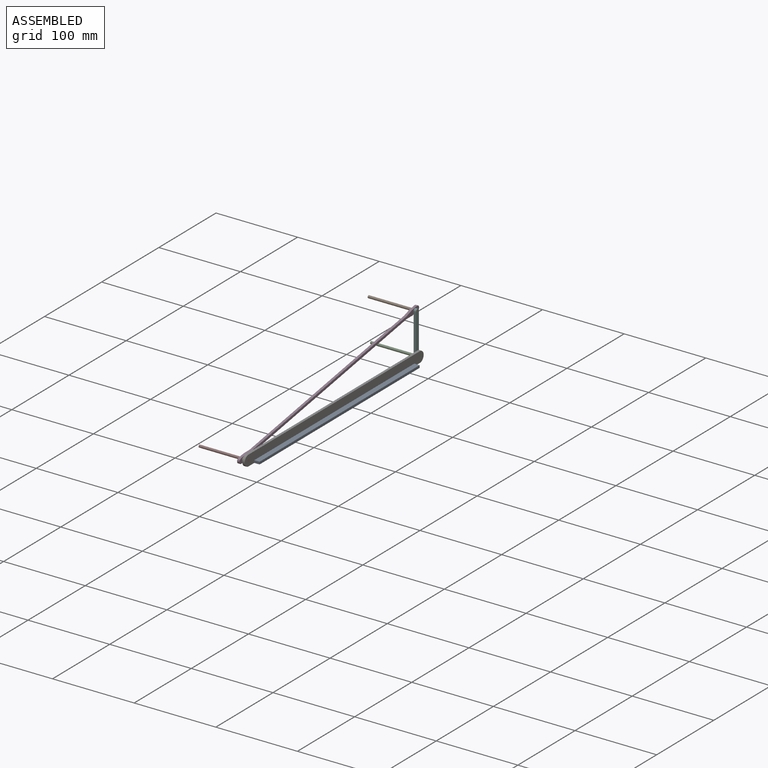
[diagram: assembled view]
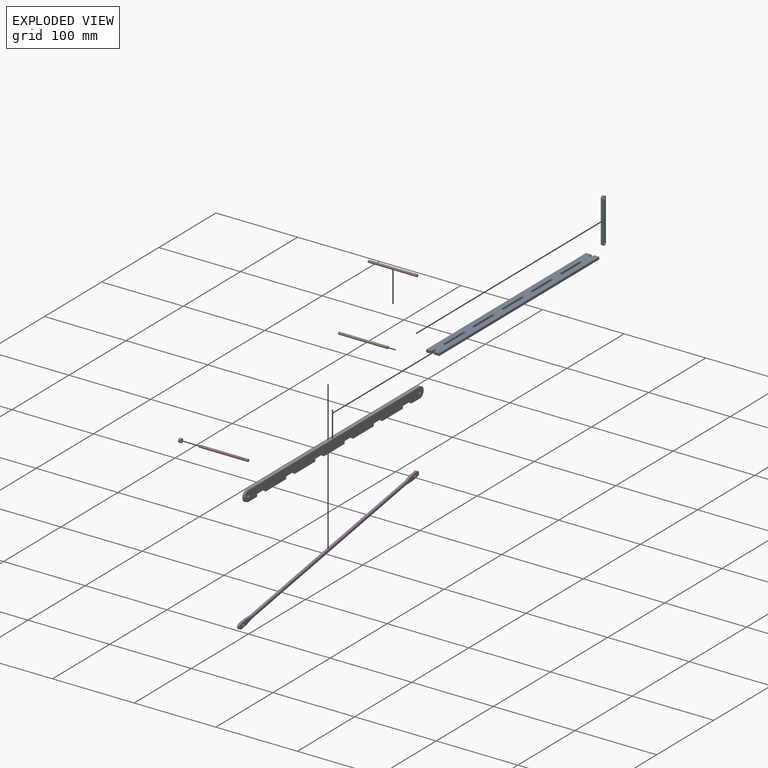
[diagram: exploded view]
GUIDED TOUR — MATED ASSEMBLY (Onshape document 0ccabe889815cbe9a2afd0c9, AutoMate assembly 0ccabe889815cbe9a2afd0c9_cd03710a9d6902d8eb512300_cfd27afecc6dace2c3d03a55_default)

This assembly has 8 components, labeled P0..P7 below (a component is one placed occurrence of a part; the same part can appear more than once), held together by 8 mates. A mate is a constraint between two components; its type names the relative motion it leaves free:
  CYLINDRICAL — leaves both rotation about and translation along the listed axis free,
  FASTENED — locks the two components together rigidly (no relative motion),
  PARALLEL — keeps the two listed directions parallel,
  REVOLUTE — leaves rotation about the listed axis free (a hinge).
Axis/direction vectors are unit vectors and 'through' points are millimeter coordinates, both in the assembly's world frame.

MATES
  1. CYLINDRICAL "Cylindrical 1": P3 <-> P1, axis (-1.000, 0.000, 0.000) through (-7.50, 0.00, 50.00) mm
  2. FASTENED "T to B": P2 <-> P6, direction (1.000, 0.000, 0.000) through (0.00, 0.00, 0.00) mm
  3. FASTENED "V to B": P5 <-> P6, direction (1.000, 0.000, 0.000) through (-3.00, 0.00, 0.00) mm
  4. FASTENED "Fastened 1": P5 <-> P1, direction (1.000, 0.000, 0.000) through (-3.00, 0.00, 50.00) mm
  5. FASTENED "C to T": P6 <-> P7, direction (1.000, 0.000, 0.000) through (0.00, -300.00, 0.00) mm
  6. REVOLUTE "Revolute 1": P4 <-> P6, axis (1.000, 0.000, 0.000) through (-3.00, -300.00, 0.00) mm
  7. FASTENED "T Beam Fasten": P0 <-> P6, direction (0.000, -1.000, 0.000) through (-1.50, -233.87, -5.00) mm
  8. PARALLEL "Parallel 1": P3 <-> P5, direction (1.000, 0.000, 0.000) through (-6.00, 0.02, 46.84) mm

ASSEMBLY ORDER
  1. P7 — the base component [order verified]
  2. P2 [order verified]
  3. P6 [order verified]
  4. P0 [order verified]
  5. P3 [order verified]
  6. P1 [order verified]
  7. P5 [order verified]
  8. P4 [order verified]
(P0 verified with a relaxed clearance tolerance: the source model stores slight part interference there.)
Order-tag legend:
  [order verified] — this step's position reverses a verified removal order: the component was checked to insert without passing through the ones already placed.

Of the 8 components, 8 carry the full construction recipe — the FeatureScript program that regenerates the part's solid from scratch; the rest are supplied as boundary geometry only.
Each toured component is shown spotlighted twice — in the assembled view, then in the exploded view, where a leader line traces a displaced component back to its assembled socket (saturated green if recipe-attached, orange if geometry-only; every other component desaturated gray) — followed by its recipe or geometry summary and the mates that hold it.
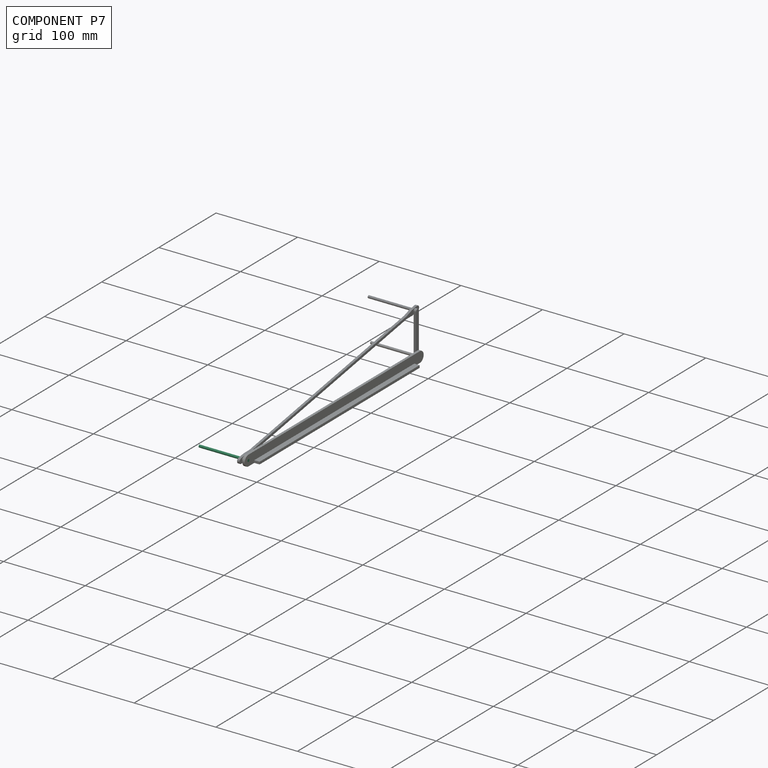
[diagram: component P7 — assembled]
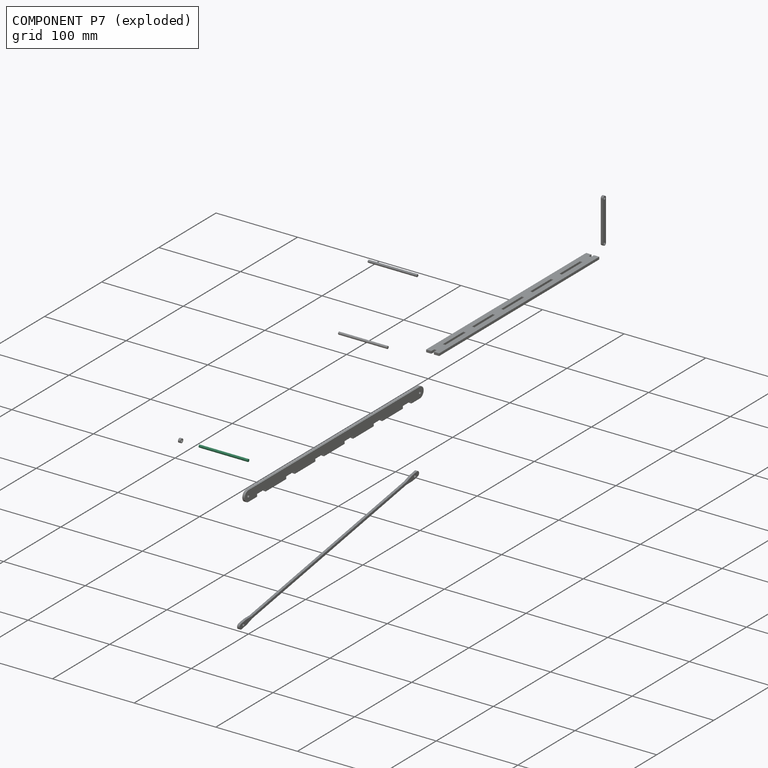
[diagram: component P7 — exploded]
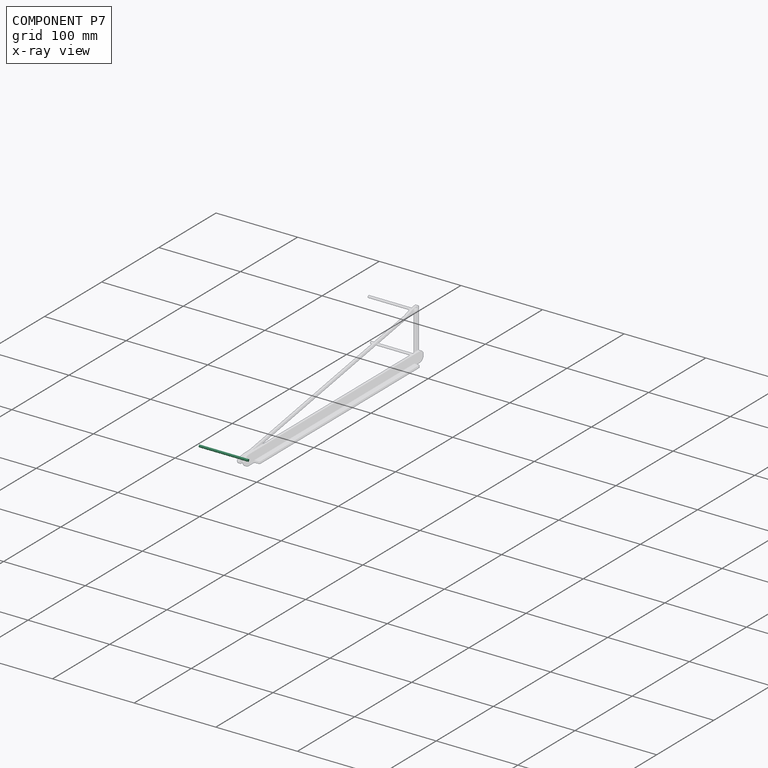
[diagram: component P7 — x-ray view]
COMPONENT P7 — same part as P1 (CADFS 00595506); its construction recipe is shown at P1.
Held by: FASTENED mate "C to T" to P6.
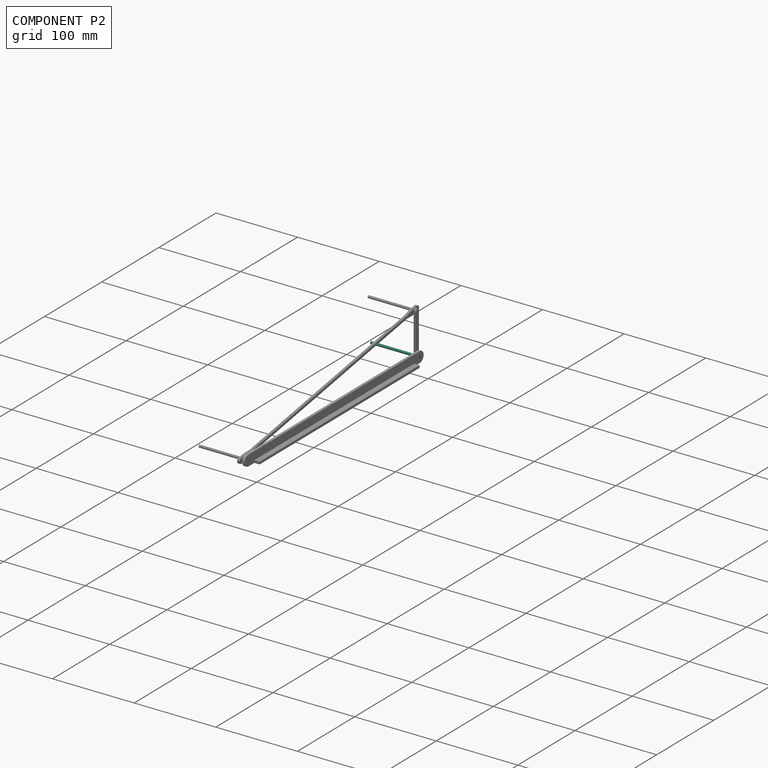
[diagram: component P2 — assembled]
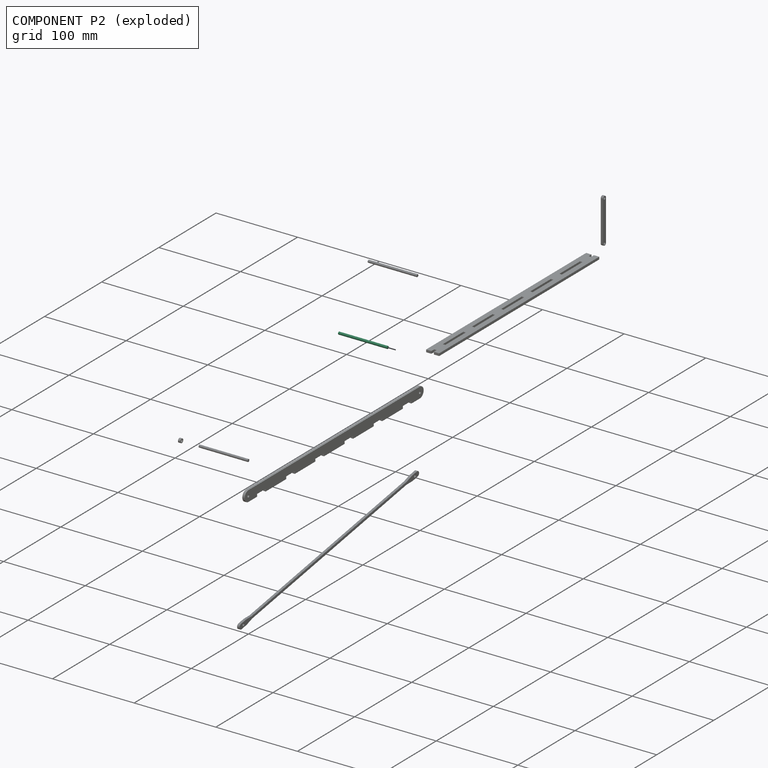
[diagram: component P2 — exploded]
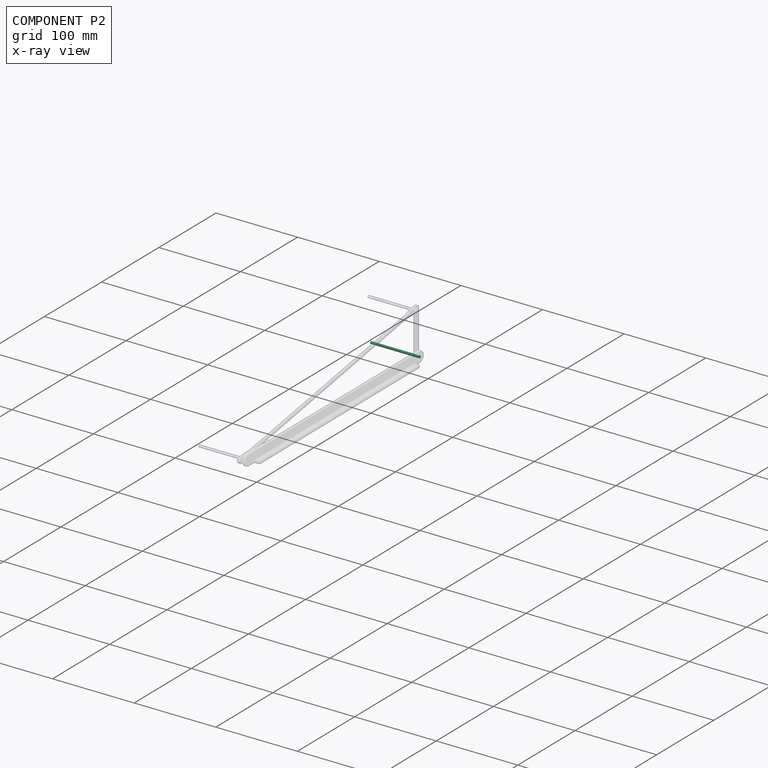
[diagram: component P2 — x-ray view]
COMPONENT P2 — same part as P1 (CADFS 00595506); its construction recipe is shown at P1.
Held by: FASTENED mate "T to B" to P6.
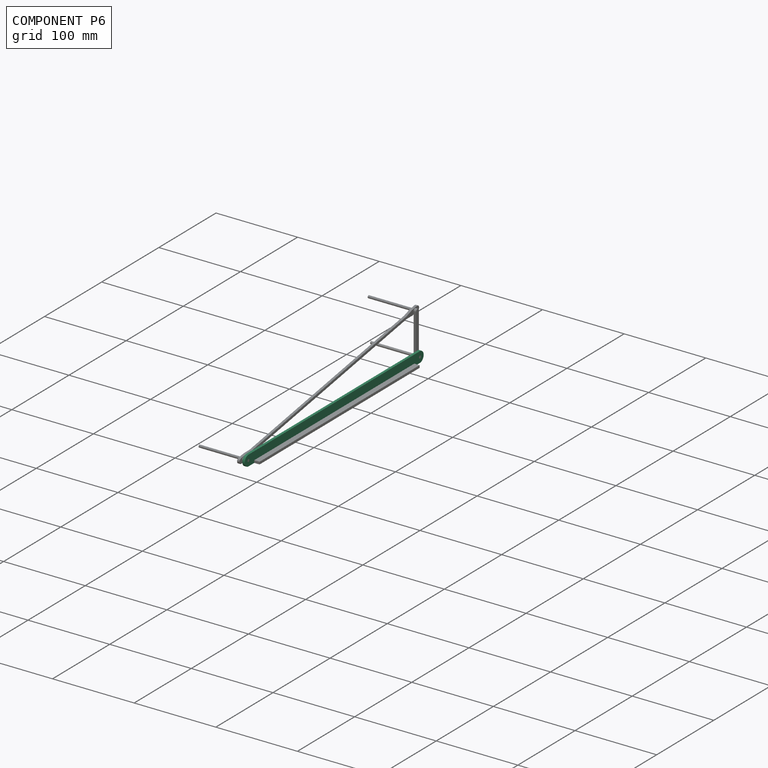
[diagram: component P6 — assembled]
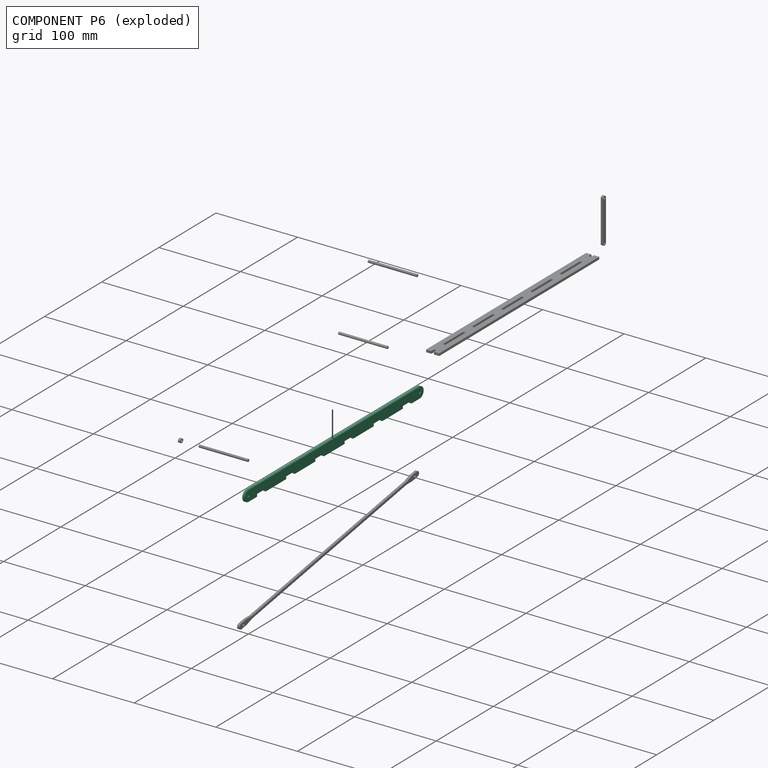
[diagram: component P6 — exploded]
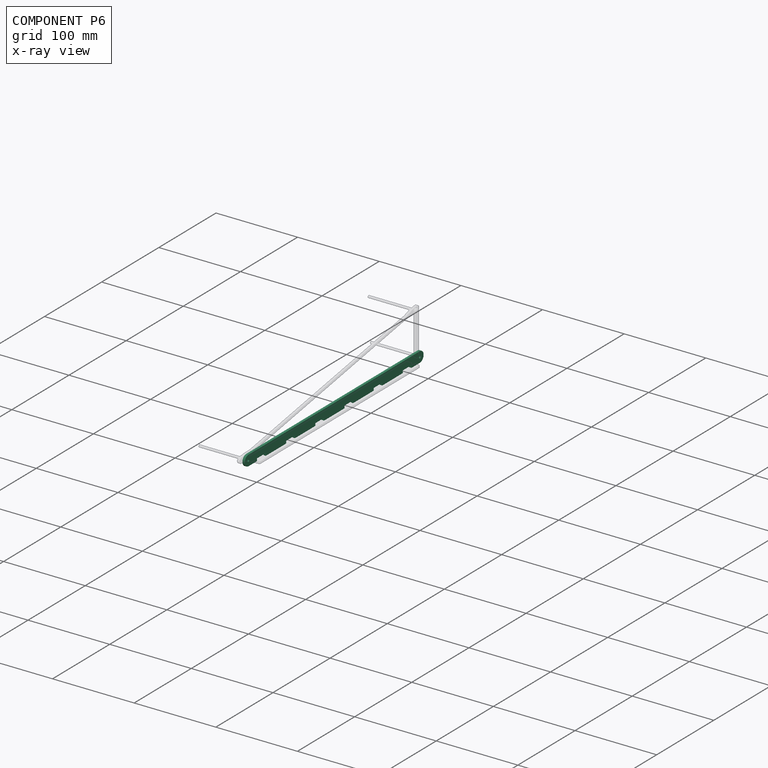
[diagram: component P6 — x-ray view]
COMPONENT P6 — recipe-attached (CADFS 00595503, mesh-verified: the recipe's output STEP matches this component's geometry to below the mesh-comparison resolution (tessellation chordal tolerance ~0.47 mm)).
Held by: FASTENED mate "T to B" to P2; FASTENED mate "V to B" to P5; FASTENED mate "C to T" to P7; REVOLUTE mate "Revolute 1" to P4; FASTENED mate "T Beam Fasten" to P0.
Construction recipe (FeatureScript — the CAD program that rebuilds this solid; sketch coordinates are in the units given by the * unit suffixes, e.g. mm):

FeatureScript 1540;
import(path : "onshape/std/geometry.fs", version : "1540.0");
import(path : "onshape/std/common.fs", version : "1540.0");
const mm = millimeter;
const VERTEX = EntityType.VERTEX;
const EDGE = EntityType.EDGE;
const FACE = EntityType.FACE;
const BODY = EntityType.BODY;
function v(x, y){return vector(x, y);}
function OD(order){return orderDisambiguation(order);}
function OSD(set){return originalSetDisambiguation(set);}
function TD(topology){return topologyDisambiguation(topology);}
function TDD(query){return trueDependencyDisambiguation(query);}
function sQuery(a, b, c) {return sketchEntityQuery(a, b, c);}

annotation { "Feature Type Name" : "Feature", "Feature Type Description" : "" }
export const myFeature = defineFeature(function(context is Context, id is Id, definition is map)
    precondition{}
    {
        {
            var Q0;
            Q0=qCreatedBy(makeId("Right.planeOp"),FACE);
            var sketch = newSketch(context, id + "F0", { "sketchPlane" : qUnion([Q0])});
            skLineSegment(sketch, "E0.top", {"start": v(-0.13, 13) * mm, "end": v(-300.13, 13) * mm});
            skArc(sketch, "E1", {"start": v(-300.13, 13) * mm, "mid": v(-306.63, 6.43) * mm, "end": v(-300, 0) * mm});
            skArc(sketch, "E2", {"start": v(0, 0) * mm, "mid": v(6.37, 6.57) * mm, "end": v(-0.13, 13) * mm});
            skCircle(sketch, "E3", {"center": v(-300.13, 6.5) * mm, "radius": 1.59 * mm});
            skCircle(sketch, "E4", {"center": v(-0.13, 6.5) * mm, "radius": 1.59 * mm});
            skLineSegment(sketch, "E5", {"start": v(-300, 0) * mm, "end": v(-285, 0) * mm});
            skLineSegment(sketch, "E6", {"start": v(-285, 0) * mm, "end": v(-285, 3) * mm});
            skLineSegment(sketch, "E7", {"start": v(-285, 3) * mm, "end": v(-270, 3) * mm});
            skLineSegment(sketch, "E8", {"start": v(-270, 3) * mm, "end": v(-270, 0) * mm});
            skLineSegment(sketch, "E9", {"start": v(-270, 0) * mm, "end": v(-234, 0) * mm});
            skLineSegment(sketch, "E10", {"start": v(-234, 0) * mm, "end": v(-234, 3) * mm});
            skLineSegment(sketch, "E11", {"start": v(-234, 3) * mm, "end": v(-219, 3) * mm});
            skLineSegment(sketch, "E12", {"start": v(-219, 3) * mm, "end": v(-219, 0) * mm});
            skLineSegment(sketch, "E13", {"start": v(-219, 0) * mm, "end": v(-183, 0) * mm});
            skLineSegment(sketch, "E14", {"start": v(-183, 0) * mm, "end": v(-183, 3) * mm});
            skLineSegment(sketch, "E15", {"start": v(-183, 3) * mm, "end": v(-168, 3) * mm});
            skLineSegment(sketch, "E16", {"start": v(-168, 3) * mm, "end": v(-168, 0) * mm});
            skLineSegment(sketch, "E17", {"start": v(-168, 0) * mm, "end": v(-132, 0) * mm});
            skLineSegment(sketch, "E18", {"start": v(-132, 0) * mm, "end": v(-132, 3) * mm});
            skLineSegment(sketch, "E19", {"start": v(-132, 3) * mm, "end": v(-117, 3) * mm});
            skLineSegment(sketch, "E20", {"start": v(-117, 3) * mm, "end": v(-117, 0) * mm});
            skLineSegment(sketch, "E21", {"start": v(-117, 0) * mm, "end": v(-81, 0) * mm});
            skLineSegment(sketch, "E22", {"start": v(-81, 0) * mm, "end": v(-81, 3) * mm});
            skLineSegment(sketch, "E23", {"start": v(-81, 3) * mm, "end": v(-66, 3) * mm});
            skLineSegment(sketch, "E24", {"start": v(-66, 3) * mm, "end": v(-66, 0) * mm});
            skLineSegment(sketch, "E25", {"start": v(-66, 0) * mm, "end": v(-30, 0) * mm});
            skLineSegment(sketch, "E26", {"start": v(-30, 0) * mm, "end": v(-30, 3) * mm});
            skLineSegment(sketch, "E27", {"start": v(-30, 3) * mm, "end": v(-15, 3) * mm});
            skLineSegment(sketch, "E28", {"start": v(-15, 3) * mm, "end": v(-15, 0) * mm});
            skLineSegment(sketch, "E29", {"start": v(-15, 0) * mm, "end": v(0, 0) * mm});
            skSolve(sketch);
        }
        {
            var Q0;
            Q0=makeQuery(id+"F0.imprint","IMPRINT",FACE,{"disambiguationData":[TD([[makeQuery(id+"F0.imprint","IMPRINT",EDGE,{"derivedFrom":sQuery(id+"F0.wireOp",EDGE,"E0.top")}),1.0]])]});
            extrude(context, id + "F1", {"entities" : qUnion([Q0]), "depth" : 3 * mm, "offsetDistance" : 25 * mm});
        }
    });
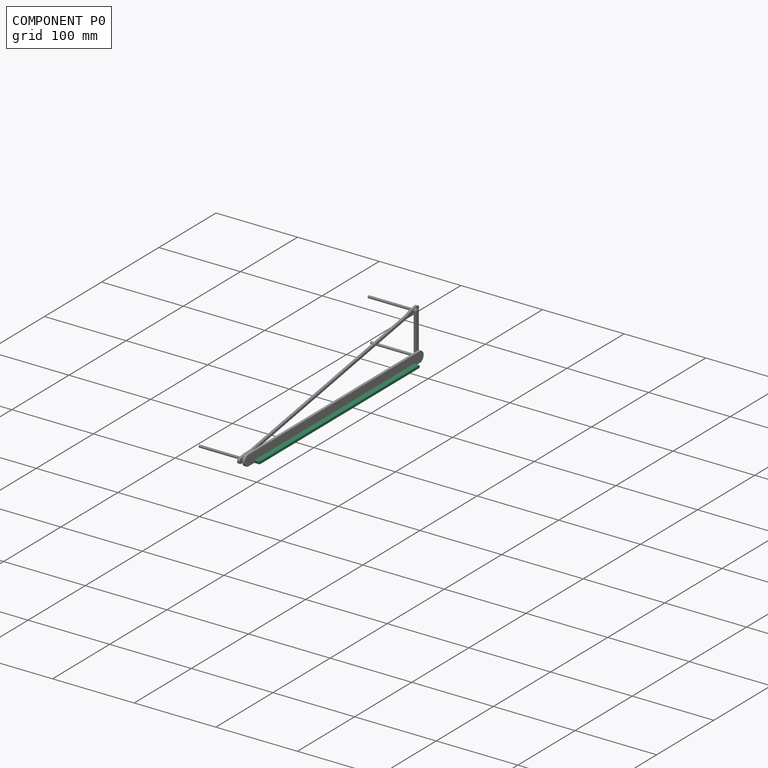
[diagram: component P0 — assembled]
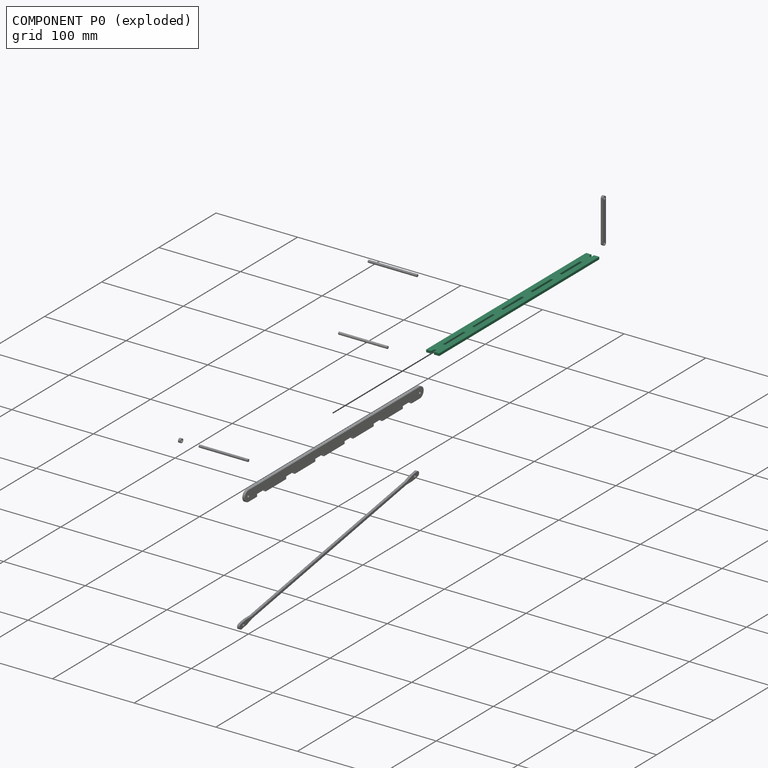
[diagram: component P0 — exploded]
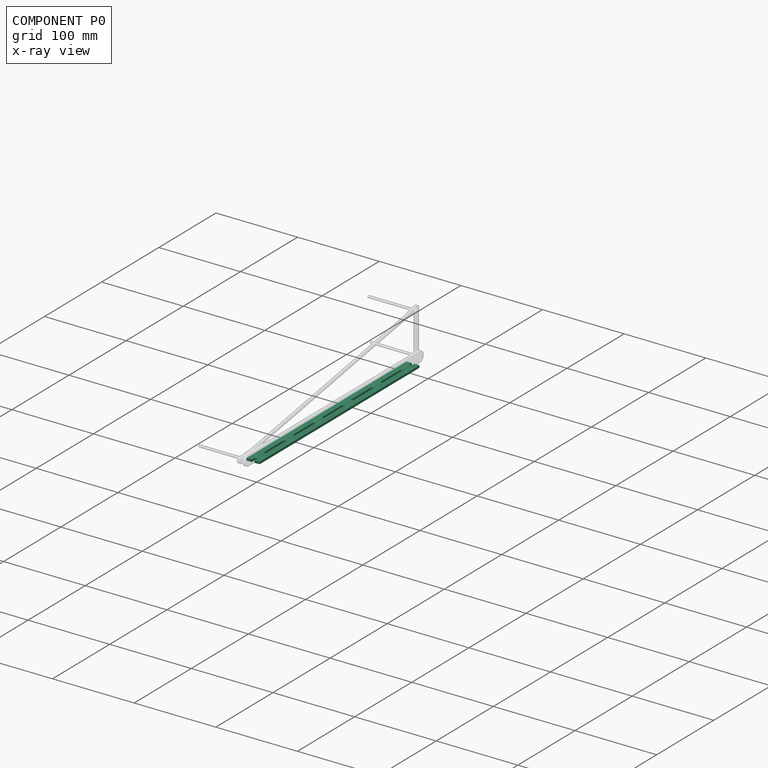
[diagram: component P0 — x-ray view]
COMPONENT P0 — recipe-attached (CADFS 00595504, mesh-verified: the recipe's output STEP matches this component's geometry to below the mesh-comparison resolution (tessellation chordal tolerance ~0.421 mm)).
Held by: FASTENED mate "T Beam Fasten" to P6.
Construction recipe (FeatureScript — the CAD program that rebuilds this solid; sketch coordinates are in the units given by the * unit suffixes, e.g. mm):

FeatureScript 1540;
import(path : "onshape/std/geometry.fs", version : "1540.0");
import(path : "onshape/std/common.fs", version : "1540.0");
const mm = millimeter;
const VERTEX = EntityType.VERTEX;
const EDGE = EntityType.EDGE;
const FACE = EntityType.FACE;
const BODY = EntityType.BODY;
function v(x, y){return vector(x, y);}
function OD(order){return orderDisambiguation(order);}
function OSD(set){return originalSetDisambiguation(set);}
function TD(topology){return topologyDisambiguation(topology);}
function TDD(query){return trueDependencyDisambiguation(query);}
function sQuery(a, b, c) {return sketchEntityQuery(a, b, c);}

annotation { "Feature Type Name" : "Feature", "Feature Type Description" : "" }
export const myFeature = defineFeature(function(context is Context, id is Id, definition is map)
    precondition{}
    {
        {
            var Q0;
            Q0=qCreatedBy(makeId("Top.planeOp"),FACE);
            var sketch = newSketch(context, id + "F0", { "sketchPlane" : qUnion([Q0])});
            skLineSegment(sketch, "E0.bottom", {"start": v(-6.5, 0) * mm, "end": v(-9.5, 0) * mm});
            skLineSegment(sketch, "E0.top", {"start": v(-6.5, -270) * mm, "end": v(-9.5, -270) * mm});
            skLineSegment(sketch, "E0.left", {"start": v(0, 0) * mm, "end": v(0, -270) * mm});
            skLineSegment(sketch, "E0.right", {"start": v(-16, 0) * mm, "end": v(-16, -270) * mm});
            skLineSegment(sketch, "E1.bottom", {"start": v(-9.5, -255) * mm, "end": v(-6.5, -255) * mm});
            skLineSegment(sketch, "E1.top", {"start": v(-9.5, -219) * mm, "end": v(-6.5, -219) * mm});
            skLineSegment(sketch, "E1.left", {"start": v(-9.5, -255) * mm, "end": v(-9.5, -219) * mm});
            skLineSegment(sketch, "E1.right", {"start": v(-6.5, -255) * mm, "end": v(-6.5, -219) * mm});
            skLineSegment(sketch, "E2.bottom", {"start": v(-9.5, -204) * mm, "end": v(-6.5, -204) * mm});
            skLineSegment(sketch, "E2.top", {"start": v(-9.5, -168) * mm, "end": v(-6.5, -168) * mm});
            skLineSegment(sketch, "E2.left", {"start": v(-9.5, -204) * mm, "end": v(-9.5, -168) * mm});
            skLineSegment(sketch, "E2.right", {"start": v(-6.5, -204) * mm, "end": v(-6.5, -168) * mm});
            skLineSegment(sketch, "E3.bottom", {"start": v(-9.5, -153) * mm, "end": v(-6.5, -153) * mm});
            skLineSegment(sketch, "E3.top", {"start": v(-9.5, -117) * mm, "end": v(-6.5, -117) * mm});
            skLineSegment(sketch, "E3.left", {"start": v(-9.5, -153) * mm, "end": v(-9.5, -117) * mm});
            skLineSegment(sketch, "E3.right", {"start": v(-6.5, -153) * mm, "end": v(-6.5, -117) * mm});
            skLineSegment(sketch, "E4.bottom", {"start": v(-9.5, -102) * mm, "end": v(-6.5, -102) * mm});
            skLineSegment(sketch, "E4.top", {"start": v(-9.5, -66) * mm, "end": v(-6.5, -66) * mm});
            skLineSegment(sketch, "E4.left", {"start": v(-9.5, -102) * mm, "end": v(-9.5, -66) * mm});
            skLineSegment(sketch, "E4.right", {"start": v(-6.5, -102) * mm, "end": v(-6.5, -66) * mm});
            skLineSegment(sketch, "E5.bottom", {"start": v(-9.5, -51) * mm, "end": v(-6.5, -51) * mm});
            skLineSegment(sketch, "E5.top", {"start": v(-9.5, -15) * mm, "end": v(-6.5, -15) * mm});
            skLineSegment(sketch, "E5.left", {"start": v(-9.5, -51) * mm, "end": v(-9.5, -15) * mm});
            skLineSegment(sketch, "E5.right", {"start": v(-6.5, -51) * mm, "end": v(-6.5, -15) * mm});
            skLineSegment(sketch, "E6", {"start": v(-16, 0) * mm, "end": v(-16, 5) * mm});
            skLineSegment(sketch, "E7", {"start": v(-16, 5) * mm, "end": v(-9.5, 5) * mm});
            skLineSegment(sketch, "E8", {"start": v(-9.5, 5) * mm, "end": v(-9.5, 0) * mm});
            skLineSegment(sketch, "E9", {"start": v(-9.5, 0) * mm, "end": v(-6.5, 0) * mm});
            skLineSegment(sketch, "E10", {"start": v(-6.5, 0) * mm, "end": v(-6.5, 5) * mm});
            skLineSegment(sketch, "E11", {"start": v(-6.5, 5) * mm, "end": v(0, 5) * mm});
            skLineSegment(sketch, "E12", {"start": v(0, 5) * mm, "end": v(0, 0) * mm});
            skLineSegment(sketch, "E13", {"start": v(-16, -270) * mm, "end": v(-16, -275) * mm});
            skLineSegment(sketch, "E14", {"start": v(-16, -275) * mm, "end": v(-9.5, -275) * mm});
            skLineSegment(sketch, "E15", {"start": v(-9.5, -275) * mm, "end": v(-9.5, -270) * mm});
            skLineSegment(sketch, "E16", {"start": v(-9.5, -270) * mm, "end": v(-6.5, -270) * mm});
            skLineSegment(sketch, "E17", {"start": v(-6.5, -270) * mm, "end": v(-6.5, -275) * mm});
            skLineSegment(sketch, "E18", {"start": v(-6.5, -275) * mm, "end": v(0, -275) * mm});
            skLineSegment(sketch, "E19", {"start": v(0, -275) * mm, "end": v(0, -270) * mm});
            skSolve(sketch);
        }
        {
            var Q0;
            Q0=makeQuery(id+"F0.imprint","IMPRINT",FACE,{"disambiguationData":[TD([[makeQuery(id+"F0.imprint","IMPRINT",EDGE,{"derivedFrom":sQuery(id+"F0.wireOp",EDGE,"E0.left")}),-1.0]])]});
            extrude(context, id + "F1", {"entities" : qUnion([Q0]), "depth" : 3 * mm, "offsetDistance" : 25 * mm});
        }
    });
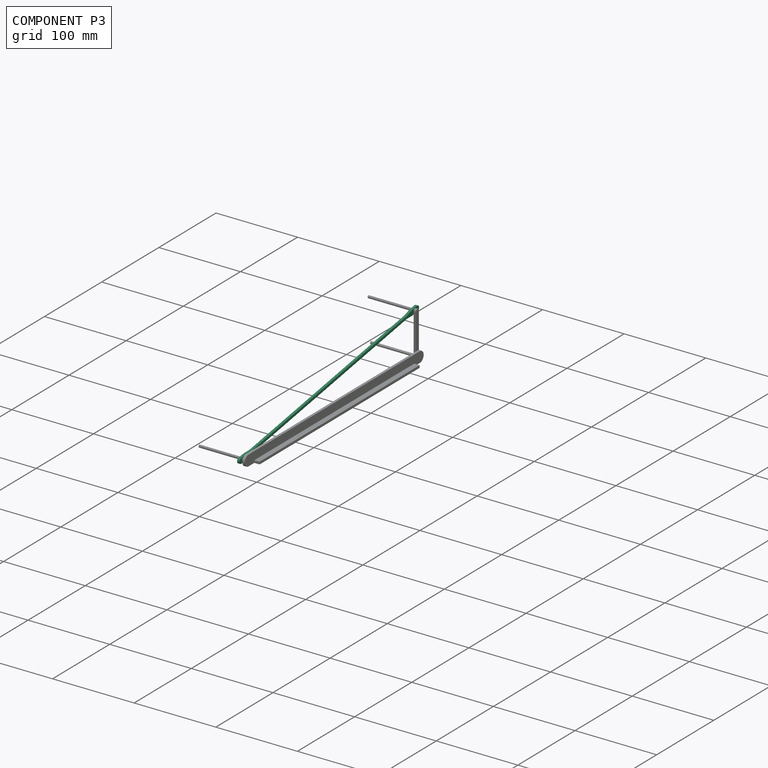
[diagram: component P3 — assembled]
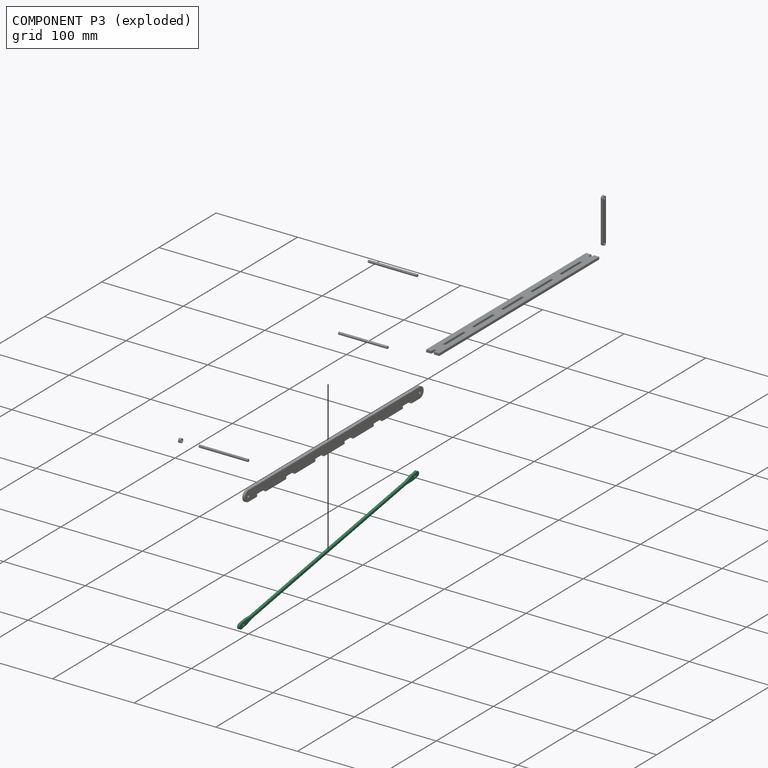
[diagram: component P3 — exploded]
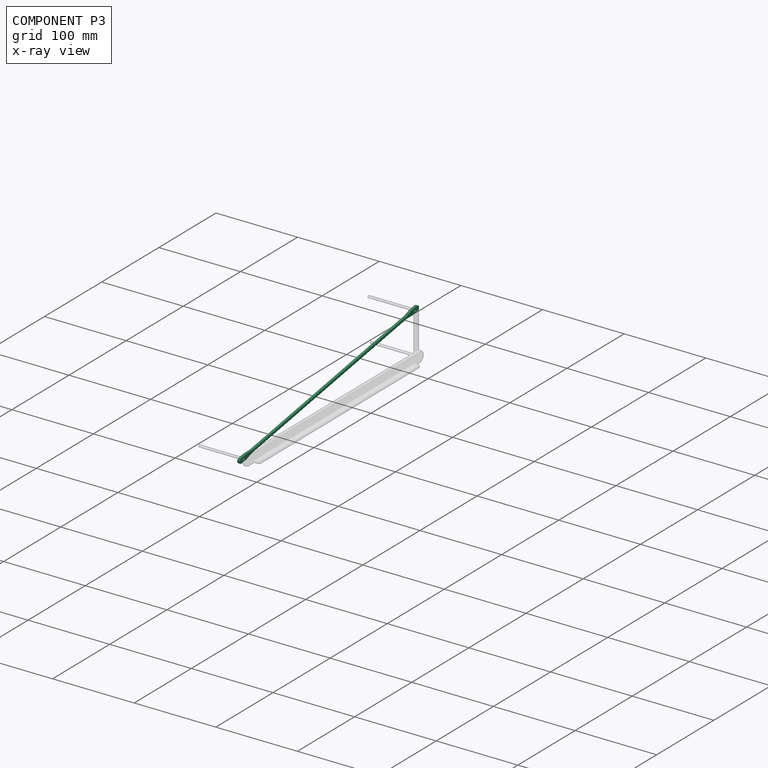
[diagram: component P3 — x-ray view]
COMPONENT P3 — recipe-attached (CADFS 00595507, mesh-verified: the recipe's output STEP matches this component's geometry to below the mesh-comparison resolution (tessellation chordal tolerance ~0.478 mm)).
Held by: CYLINDRICAL mate "Cylindrical 1" to P1; PARALLEL mate "Parallel 1" to P5.
Construction recipe (FeatureScript — the CAD program that rebuilds this solid; sketch coordinates are in the units given by the * unit suffixes, e.g. mm):

FeatureScript 1540;
import(path : "onshape/std/geometry.fs", version : "1540.0");
import(path : "onshape/std/common.fs", version : "1540.0");
const mm = millimeter;
const VERTEX = EntityType.VERTEX;
const EDGE = EntityType.EDGE;
const FACE = EntityType.FACE;
const BODY = EntityType.BODY;
function v(x, y){return vector(x, y);}
function OD(order){return orderDisambiguation(order);}
function OSD(set){return originalSetDisambiguation(set);}
function TD(topology){return topologyDisambiguation(topology);}
function TDD(query){return trueDependencyDisambiguation(query);}
function sQuery(a, b, c) {return sketchEntityQuery(a, b, c);}

annotation { "Feature Type Name" : "Feature", "Feature Type Description" : "" }
export const myFeature = defineFeature(function(context is Context, id is Id, definition is map)
    precondition{}
    {
        {
            var Q0;
            Q0=qCreatedBy(makeId("Right.planeOp"),FACE);
            var sketch = newSketch(context, id + "F0", { "sketchPlane" : qUnion([Q0])});
            skCircle(sketch, "E0", {"center": v(206.26, 1.5) * mm, "radius": 1.56 * mm});
            skLineSegment(sketch, "E1.bottom", {"start": v(201.26, 4.63) * mm, "end": v(210.26, 4.63) * mm});
            skLineSegment(sketch, "E1.top", {"start": v(201.26, -1.63) * mm, "end": v(210.26, -1.63) * mm});
            skArc(sketch, "E2", {"start": v(210.26, -1.63) * mm, "mid": v(213.38, 1.5) * mm, "end": v(210.26, 4.62) * mm});
            skLineSegment(sketch, "E3", {"start": v(201.26, 4.63) * mm, "end": v(191.26, 3) * mm});
            skLineSegment(sketch, "E4", {"start": v(201.26, -1.63) * mm, "end": v(191.26, 0) * mm});
            skCircle(sketch, "E5.MirrorC", {"center": v(-97.88, 1.5) * mm, "radius": 1.56 * mm});
            skLineSegment(sketch, "E6.MirrorCS", {"start": v(-92.88, 4.62) * mm, "end": v(-101.88, 4.62) * mm});
            skLineSegment(sketch, "E7.MirrorCS", {"start": v(-92.88, -1.63) * mm, "end": v(-101.88, -1.63) * mm});
            skLineSegment(sketch, "E8.MirrorCS", {"start": v(-92.88, 4.62) * mm, "end": v(-82.88, 3) * mm});
            skArc(sketch, "E9.MirrorCS", {"start": v(-101.88, -1.63) * mm, "mid": v(-105, 1.5) * mm, "end": v(-101.88, 4.62) * mm});
            skLineSegment(sketch, "E10.MirrorCS", {"start": v(-92.88, -1.63) * mm, "end": v(-82.88, 0) * mm});
            skLineSegment(sketch, "E11", {"start": v(-82.88, 3) * mm, "end": v(191.26, 3) * mm});
            skLineSegment(sketch, "E12", {"start": v(191.26, 0) * mm, "end": v(-82.88, 0) * mm});
            skSolve(sketch);
        }
        {
            var Q0;
            Q0 = qSketchRegion(id + "F0", true);
            extrude(context, id + "F1", {"entities" : qUnion([Q0]), "depth" : 3 * mm, "offsetDistance" : 25 * mm});
        }
    });
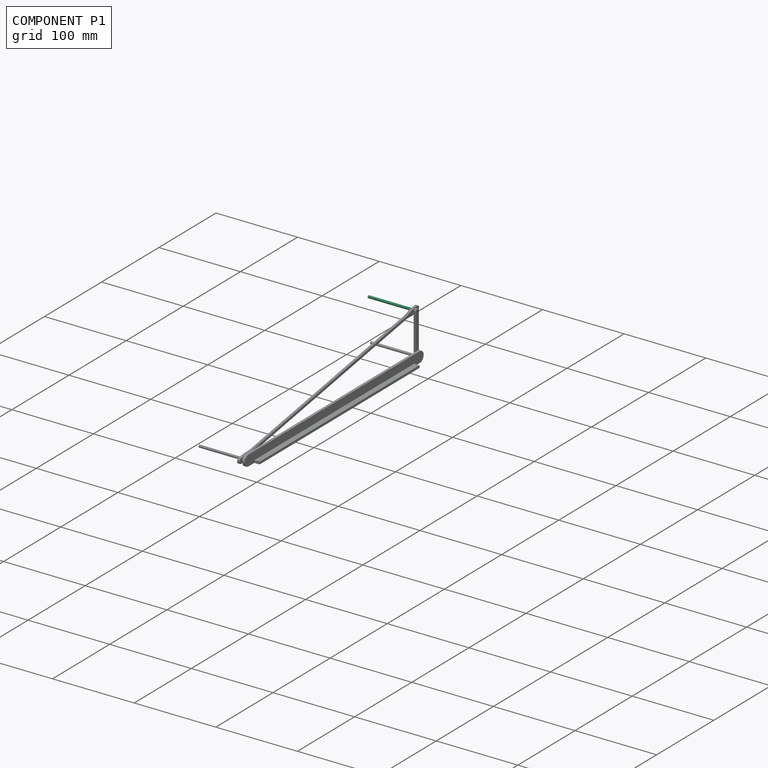
[diagram: component P1 — assembled]
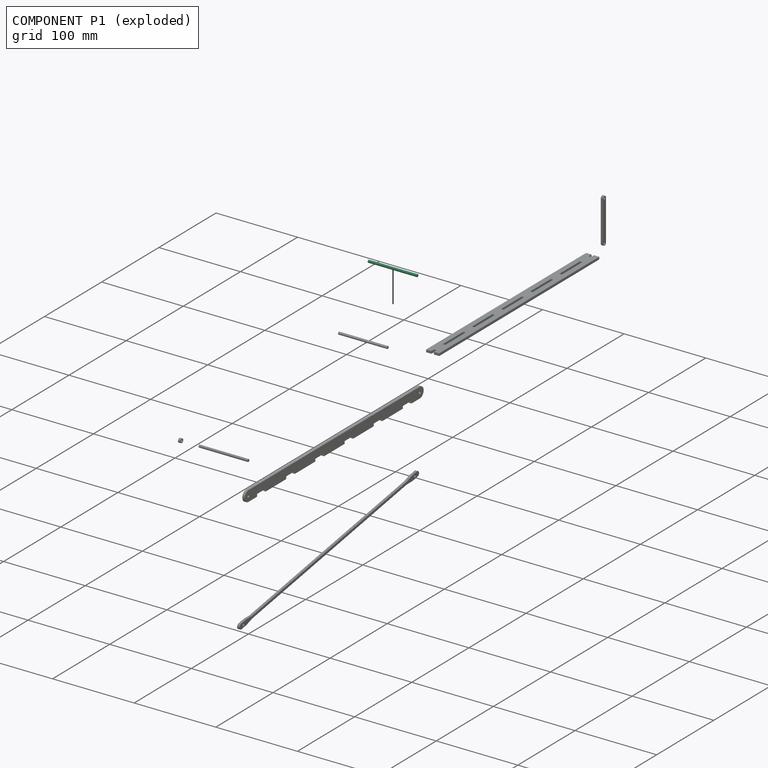
[diagram: component P1 — exploded]
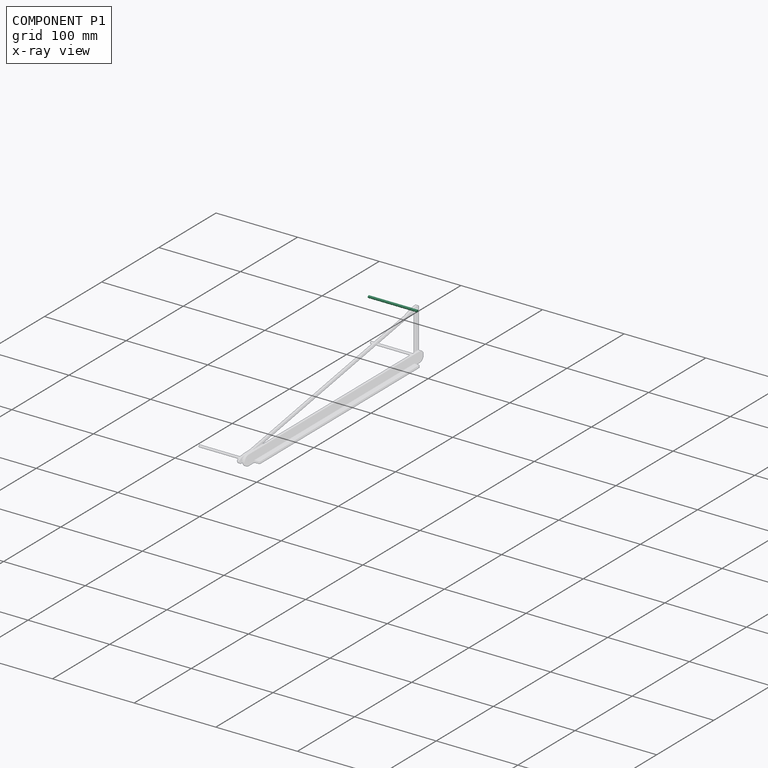
[diagram: component P1 — x-ray view]
COMPONENT P1 — recipe-attached (CADFS 00595506, mesh-verified: the recipe's output STEP matches this component's geometry to below the mesh-comparison resolution (tessellation chordal tolerance ~0.0902 mm)).
Held by: CYLINDRICAL mate "Cylindrical 1" to P3; FASTENED mate "Fastened 1" to P5.
Construction recipe (FeatureScript — the CAD program that rebuilds this solid; sketch coordinates are in the units given by the * unit suffixes, e.g. mm):

FeatureScript 1540;
import(path : "onshape/std/geometry.fs", version : "1540.0");
import(path : "onshape/std/common.fs", version : "1540.0");
const mm = millimeter;
const VERTEX = EntityType.VERTEX;
const EDGE = EntityType.EDGE;
const FACE = EntityType.FACE;
const BODY = EntityType.BODY;
function v(x, y){return vector(x, y);}
function OD(order){return orderDisambiguation(order);}
function OSD(set){return originalSetDisambiguation(set);}
function TD(topology){return topologyDisambiguation(topology);}
function TDD(query){return trueDependencyDisambiguation(query);}
function sQuery(a, b, c) {return sketchEntityQuery(a, b, c);}

annotation { "Feature Type Name" : "Feature", "Feature Type Description" : "" }
export const myFeature = defineFeature(function(context is Context, id is Id, definition is map)
    precondition{}
    {
        {
            var Q0;
            Q0=qCreatedBy(makeId("Right.planeOp"),FACE);
            var sketch = newSketch(context, id + "F0", { "sketchPlane" : qUnion([Q0])});
            skCircle(sketch, "E0", {"center": v(0, 0) * mm, "radius": 1.56 * mm});
            skSolve(sketch);
        }
        {
            var Q0;
            Q0=makeQuery(id+"F0.imprint","IMPRINT",FACE,{"disambiguationData":[TD([[makeQuery(id+"F0.imprint","IMPRINT",EDGE,{"derivedFrom":sQuery(id+"F0.wireOp",EDGE,"E0")}),1.0]])]});
            extrude(context, id + "F1", {"entities" : qUnion([Q0]), "depth" : 60 * mm, "offsetDistance" : 25 * mm});
        }
    });
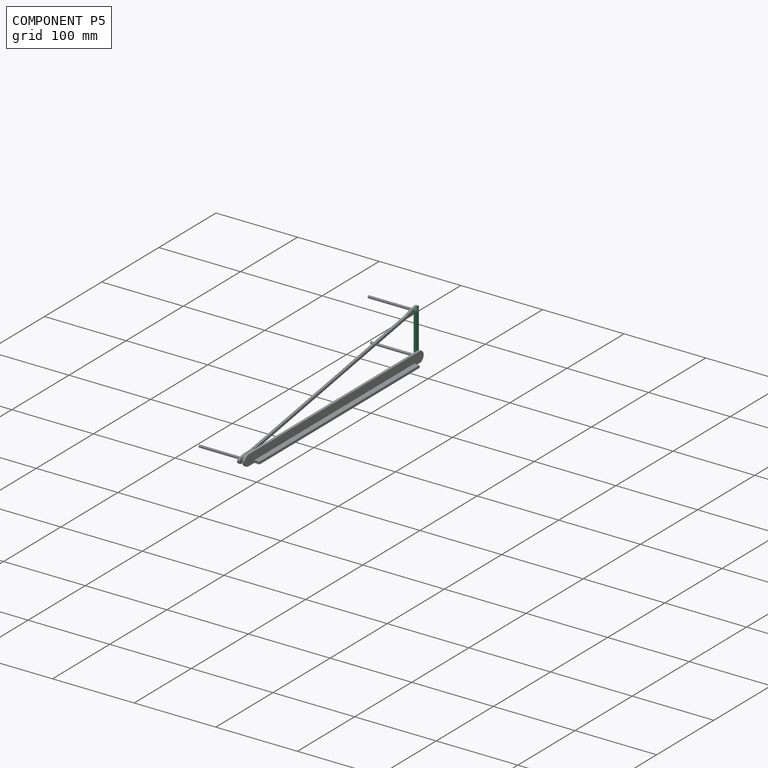
[diagram: component P5 — assembled]
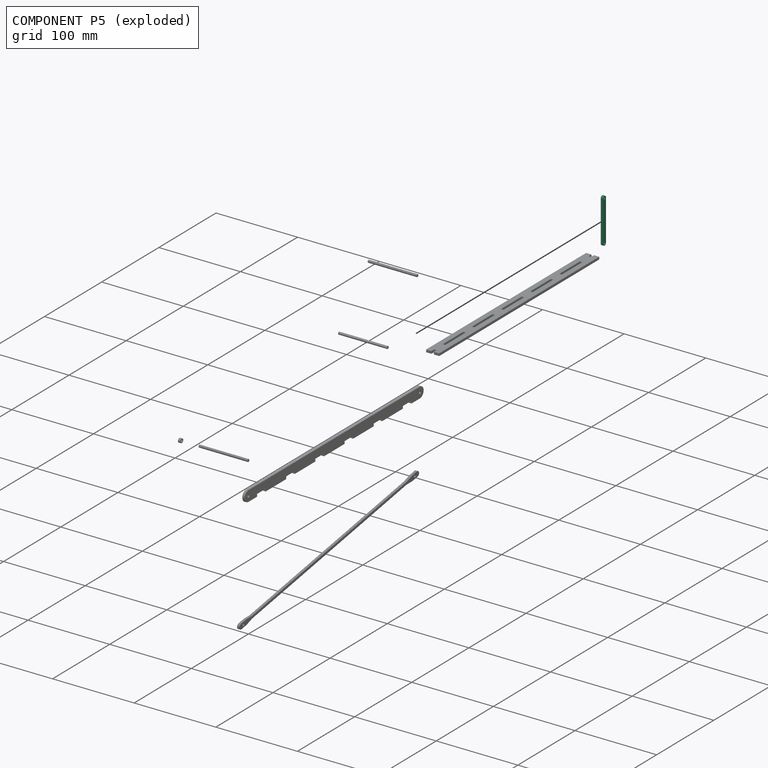
[diagram: component P5 — exploded]
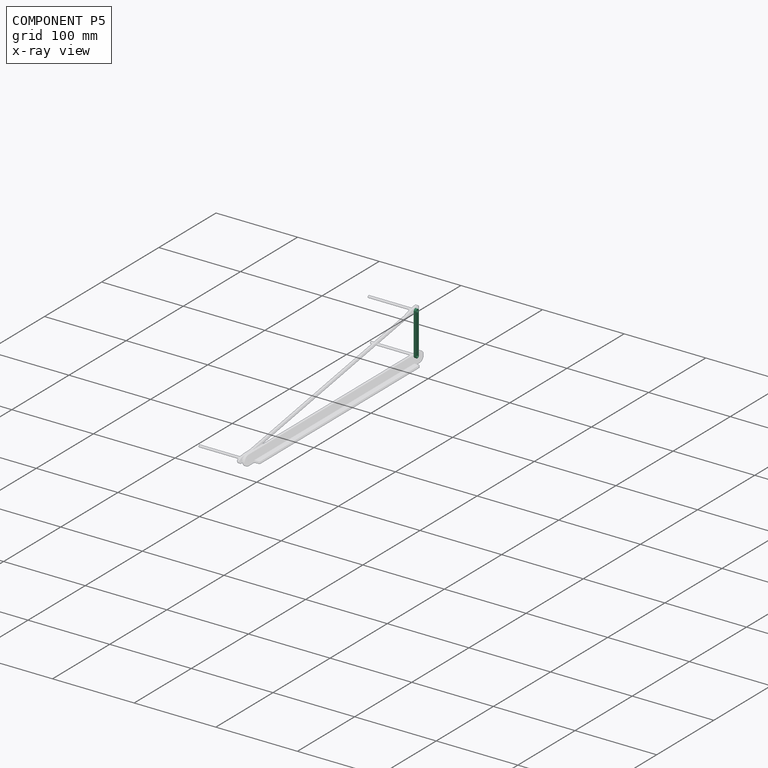
[diagram: component P5 — x-ray view]
COMPONENT P5 — recipe-attached (CADFS 00595505, mesh-verified: the recipe's output STEP matches this component's geometry to below the mesh-comparison resolution (tessellation chordal tolerance ~0.0829 mm)).
Held by: FASTENED mate "V to B" to P6; FASTENED mate "Fastened 1" to P1; PARALLEL mate "Parallel 1" to P3.
Construction recipe (FeatureScript — the CAD program that rebuilds this solid; sketch coordinates are in the units given by the * unit suffixes, e.g. mm):

FeatureScript 1540;
import(path : "onshape/std/geometry.fs", version : "1540.0");
import(path : "onshape/std/common.fs", version : "1540.0");
const mm = millimeter;
const VERTEX = EntityType.VERTEX;
const EDGE = EntityType.EDGE;
const FACE = EntityType.FACE;
const BODY = EntityType.BODY;
function v(x, y){return vector(x, y);}
function OD(order){return orderDisambiguation(order);}
function OSD(set){return originalSetDisambiguation(set);}
function TD(topology){return topologyDisambiguation(topology);}
function TDD(query){return trueDependencyDisambiguation(query);}
function sQuery(a, b, c) {return sketchEntityQuery(a, b, c);}

annotation { "Feature Type Name" : "Feature", "Feature Type Description" : "" }
export const myFeature = defineFeature(function(context is Context, id is Id, definition is map)
    precondition{}
    {
        {
            var Q0;
            Q0=qCreatedBy(makeId("Right.planeOp"),FACE);
            var sketch = newSketch(context, id + "F0", { "sketchPlane" : qUnion([Q0])});
            skLineSegment(sketch, "E0.left", {"start": v(0, 0) * mm, "end": v(0, 50) * mm});
            skLineSegment(sketch, "E0.right", {"start": v(-5, 0) * mm, "end": v(-5, 50) * mm});
            skArc(sketch, "E1", {"start": v(0, 50) * mm, "mid": v(-2.5, 52.5) * mm, "end": v(-5, 50) * mm});
            skArc(sketch, "E2", {"start": v(-5, 0) * mm, "mid": v(-2.5, -2.5) * mm, "end": v(0, 0) * mm});
            skCircle(sketch, "E3", {"center": v(-2.5, 0) * mm, "radius": 1.56 * mm});
            skCircle(sketch, "E4", {"center": v(-2.5, 50) * mm, "radius": 1.56 * mm});
            skSolve(sketch);
        }
        {
            var Q0;
            Q0 = qSketchRegion(id + "F0", true);
            extrude(context, id + "F1", {"entities" : qUnion([Q0]), "depth" : 3 * mm, "offsetDistance" : 25 * mm});
        }
    });
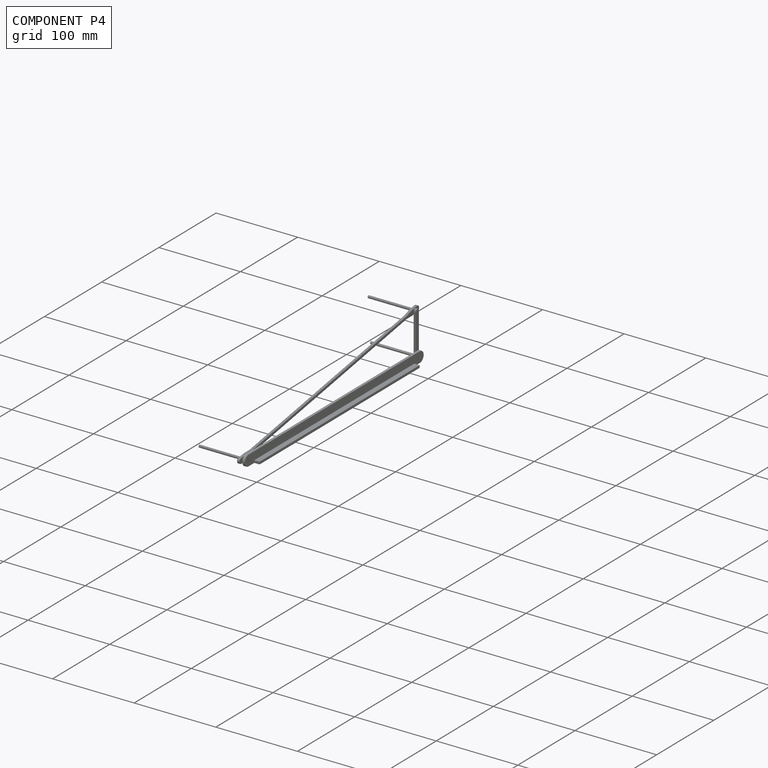
[diagram: component P4 — assembled]
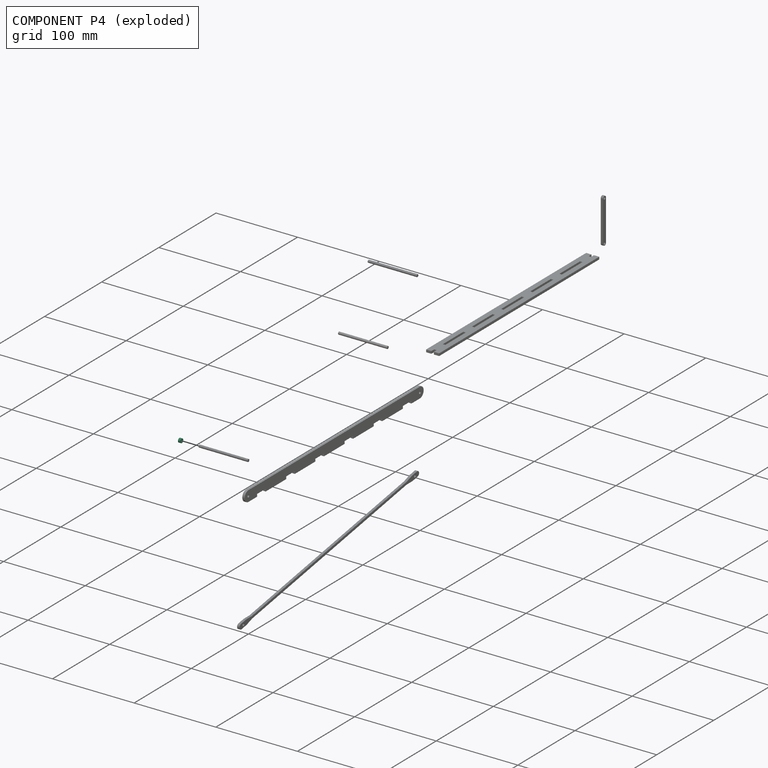
[diagram: component P4 — exploded]
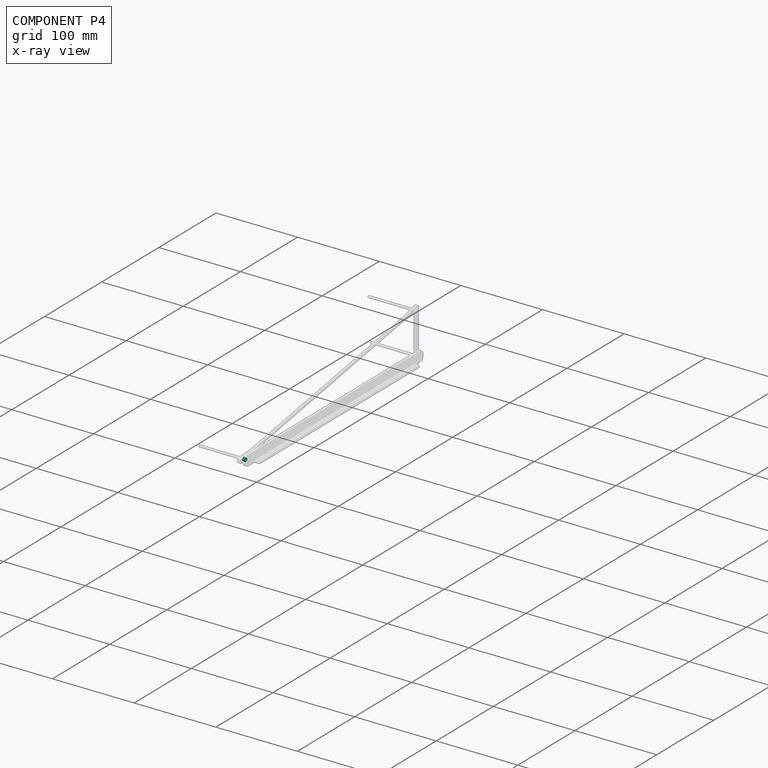
[diagram: component P4 — x-ray view]
COMPONENT P4 — recipe-attached (CADFS 00595508, mesh-verified: the recipe's output STEP matches this component's geometry to below the mesh-comparison resolution (tessellation chordal tolerance ~0.0115 mm)).
Held by: REVOLUTE mate "Revolute 1" to P6.
Construction recipe (FeatureScript — the CAD program that rebuilds this solid; sketch coordinates are in the units given by the * unit suffixes, e.g. mm):

FeatureScript 1540;
import(path : "onshape/std/geometry.fs", version : "1540.0");
import(path : "onshape/std/common.fs", version : "1540.0");
const mm = millimeter;
const VERTEX = EntityType.VERTEX;
const EDGE = EntityType.EDGE;
const FACE = EntityType.FACE;
const BODY = EntityType.BODY;
function v(x, y){return vector(x, y);}
function OD(order){return orderDisambiguation(order);}
function OSD(set){return originalSetDisambiguation(set);}
function TD(topology){return topologyDisambiguation(topology);}
function TDD(query){return trueDependencyDisambiguation(query);}
function sQuery(a, b, c) {return sketchEntityQuery(a, b, c);}

annotation { "Feature Type Name" : "Feature", "Feature Type Description" : "" }
export const myFeature = defineFeature(function(context is Context, id is Id, definition is map)
    precondition{}
    {
        {
            var Q0;
            Q0=qCreatedBy(makeId("Right.planeOp"),FACE);
            var sketch = newSketch(context, id + "F0", { "sketchPlane" : qUnion([Q0])});
            skCircle(sketch, "E0", {"center": v(0, 0) * mm, "radius": 2.5 * mm});
            skCircle(sketch, "E1", {"center": v(0, 0) * mm, "radius": 1.56 * mm});
            skSolve(sketch);
        }
        {
            var Q0;
            Q0=makeQuery(id+"F0.imprint","IMPRINT",FACE,{"disambiguationData":[TD([[makeQuery(id+"F0.imprint","IMPRINT",EDGE,{"derivedFrom":sQuery(id+"F0.wireOp",EDGE,"E0")}),1.0]])]});
            extrude(context, id + "F1", {"entities" : qUnion([Q0]), "depth" : 3 * mm, "offsetDistance" : 25 * mm});
        }
    });
PROVENANCE & LICENSES
Assembly (occurrences, transforms, mates, per-part STEP geometry): AutoMate dataset, Zenodo record 7776208, CC0.
Construction recipes: CADFS (HuggingFace VladPyatov/CADFS, CC-BY-4.0, layered over the ABC dataset), FeatureScript reconstruction programs keyed by ABC model id.
Join: ABC meta listings map ABC model id -> Onshape documentId; within a shared document, parts are matched by geometric signature (bounding-box dims + volume at 0.1% relative tolerance, exact B-rep face/solid counts).
Verification: 8 of this assembly's 8 components carry a recipe attachment, and every attachment is mesh-verified: the CADFS STEP and the AutoMate member STEP were compared as meshes in their shared local frame (symmetric sampled-point-to-mesh distance); worst across the 8 attachments: below the mesh-comparison resolution (tessellation chordal tolerance ~0.478 mm) on a 318 mm part.
Renders: orthographic iso camera (az 35 / el 25); the floor grid conveys scale (grid pitch printed in each image; no ruler). In the exploded view each component is displaced by its stored offset vector: the offsets alone carry the explosion direction (mate normal/axis signs are not orientation cues and do not encode it), and separation distances are assigned per mate-chain, not proportionally to assembly-order depth.
